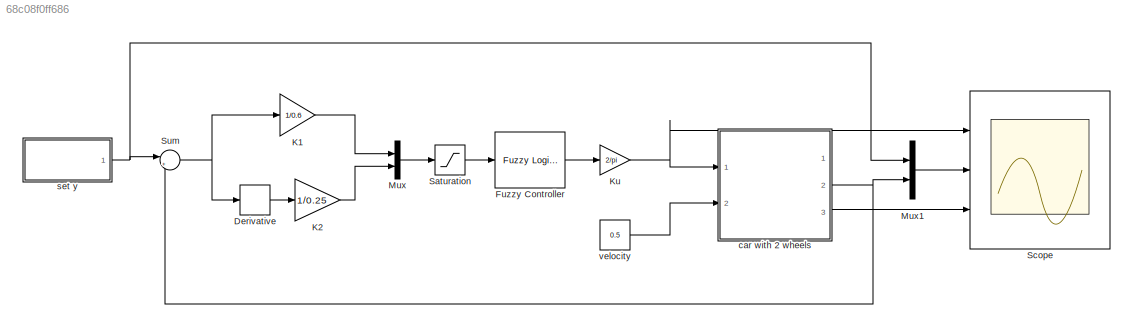
MODEL slx_68c08f0ff686
KIND model
CONFIG AbsTol = auto
CONFIG EnableMultiTasking = off
CONFIG FixedStep = 0.1
CONFIG MaxStep = auto
CONFIG MinStep = auto
CONFIG RelTol = 1e-3
CONFIG SampleTimeConstraint = Unconstrained
CONFIG Solver = ode5
CONFIG SolverName = ode5
CONFIG StartTime = 0.0
CONFIG StopTime = 120
BLOCK [Derivative] Derivative
BLOCK [Reference] Fuzzy Controller  REF=fuzblock/Fuzzy Logic   (lib defined in mdl_858b3b3e7478)
Controller
  Ports = [1, 1]
  SourceBlock = fuzblock/Fuzzy Logic \nController
  SourceProductBaseCode = FL
  SourceProductName = Fuzzy Logic Toolbox
  SourceType = Fuzzy Inference System
BLOCK [Gain] K1
  Gain = 1/0.6
  OutDataTypeStr = Inherit: Inherit via internal rule
  ParamDataTypeStr = Inherit: Inherit via internal rule
  SaturateOnIntegerOverflow = off
BLOCK [Gain] K2
  Gain = 1/0.25
  OutDataTypeStr = Inherit: Inherit via internal rule
  ParamDataTypeStr = Inherit: Inherit via internal rule
  SaturateOnIntegerOverflow = off
BLOCK [Gain] Ku
  Gain = 2/pi
  OutDataTypeStr = Inherit: Inherit via internal rule
  ParamDataTypeStr = Inherit: Inherit via internal rule
  SaturateOnIntegerOverflow = off
BLOCK [Mux] Mux
  DisplayOption = bar
  Inputs = 2
  Ports = [2, 1]
BLOCK [Mux] Mux1
  DisplayOption = bar
  Inputs = 2
  Ports = [2, 1]
BLOCK [Saturate] Saturation
  InputPortMap = u0
  LowerLimit = -1
  Ports = [1, 1]
  UpperLimit = 1
BLOCK [Scope] Scope
  Floating = off
  NumInputPorts = 3
  Ports = [3]
  ScopeSpecificationString = Simulink.scopes.TimeScopeBlockCfg('CurrentConfiguration', extmgr.ConfigurationSet(extmgr.Configuration('Core','General UI',true,'FigureColor',[1 1 1]),extmgr.Configuration('Core','Source UI',true),extmgr.Configuration('Sources','WiredSimulink',true),extmgr.Configuration('Visuals','Time Domain',true,'SerializedDisplays',{struct('MinYLimReal','-0.57538','MaxYLimReal','0.76526','YLabelReal','','MinYL...<+3248ch>
BLOCK [Sum] Sum
  IconShape = round
  InputSameDT = off
  Inputs = |+-
  OutDataTypeStr = Inherit: Inherit via internal rule
  Ports = [2, 1]
  SaturateOnIntegerOverflow = off
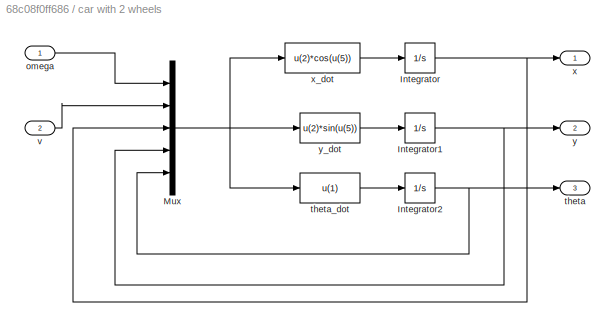
BLOCK [SubSystem] car with 2 wheels
  Ports = [2, 3]
  RequestExecContextInheritance = off
BLOCK [Integrator] car with 2 wheels/Integrator
  Ports = [1, 1]
BLOCK [Integrator] car with 2 wheels/Integrator1
  Ports = [1, 1]
BLOCK [Integrator] car with 2 wheels/Integrator2
  Ports = [1, 1]
BLOCK [Mux] car with 2 wheels/Mux
  DisplayOption = bar
  Inputs = 5
  Ports = [5, 1]
BLOCK [Inport] car with 2 wheels/omega
  IconDisplay = Port number
BLOCK [Outport] car with 2 wheels/theta
  IconDisplay = Port number
  Port = 3
BLOCK [Fcn] car with 2 wheels/theta_dot
  Expr = u(1)
BLOCK [Inport] car with 2 wheels/v
  IconDisplay = Port number
  Port = 2
BLOCK [Outport] car with 2 wheels/x
  IconDisplay = Port number
BLOCK [Fcn] car with 2 wheels/x_dot
  Expr = u(2)*cos(u(5))
BLOCK [Outport] car with 2 wheels/y
  IconDisplay = Port number
  Port = 2
BLOCK [Fcn] car with 2 wheels/y_dot
  Expr = u(2)*sin(u(5))
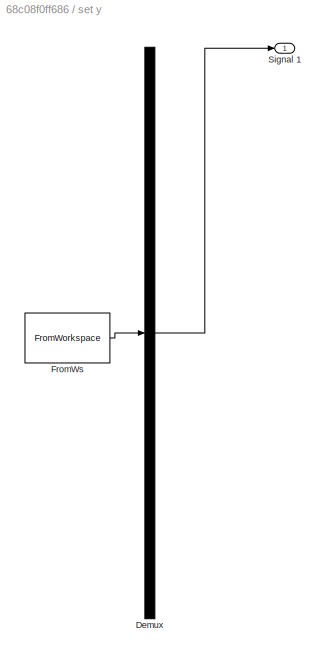
BLOCK [SubSystem] set y
  ClipboardFcn = sigbuilder_block('clipboard');
  CloseFcn = sigbuilder_block('close');
  ContinueFcn = sigbuilder_block('continue');
  CopyFcn = sigbuilder_block('copy');
  DeleteFcn = sigbuilder_block('delete');
  LoadFcn = sigbuilder_block('load');
  MaskHideContents = on
  ModelCloseFcn = sigbuilder_block('modelClose');
  NameChangeFcn = sigbuilder_block('namechange');
  OpenFcn = sigbuilder_block('open',[5.4 30 1141.2 522.6 ]);
  PauseFcn = sigbuilder_block('pause');
  Ports = [0, 1]
  PreSaveFcn = sigbuilder_block('preSave');
  RequestExecContextInheritance = off
  StartFcn = sigbuilder_block('start');
  StopFcn = sigbuilder_block('stop');
  Tag = STV Subsys
BLOCK [Demux] set y/Demux
  Outputs = 1
  Ports = [1, 1]
  Tag = STV Demux
BLOCK [FromWorkspace] set y/FromWs
  SampleTime = 0
  Tag = STV FromWs
  VariableName = tuvar
  ZeroCross = on
BLOCK [Outport] set y/Signal 1
  IconDisplay = Port number
  Tag = STV Outport
BLOCK [Constant] velocity
  Value = 0.5
LINE Derivative:1 -> K2:1
LINE Fuzzy Controller:1 -> Ku:1
LINE K1:1 -> Mux:1
LINE K2:1 -> Mux:2
NET Ku:1 -> Scope:1, car with 2 wheels:1
LINE Mux1:1 -> Scope:2
LINE Mux:1 -> Saturation:1
LINE Saturation:1 -> Fuzzy Controller:1
NET Sum:1 -> Derivative:1, K1:1
NET car with 2 wheels/Integrator1:1 -> car with 2 wheels/Mux:4, car with 2 wheels/y:1
NET car with 2 wheels/Integrator2:1 -> car with 2 wheels/Mux:5, car with 2 wheels/theta:1
NET car with 2 wheels/Integrator:1 -> car with 2 wheels/Mux:3, car with 2 wheels/x:1
NET car with 2 wheels/Mux:1 -> car with 2 wheels/theta_dot:1, car with 2 wheels/x_dot:1, car with 2 wheels/y_dot:1
LINE car with 2 wheels/omega:1 -> car with 2 wheels/Mux:1
LINE car with 2 wheels/theta_dot:1 -> car with 2 wheels/Integrator2:1
LINE car with 2 wheels/v:1 -> car with 2 wheels/Mux:2
LINE car with 2 wheels/x_dot:1 -> car with 2 wheels/Integrator:1
LINE car with 2 wheels/y_dot:1 -> car with 2 wheels/Integrator1:1
NET car with 2 wheels:2 -> Mux1:2, Sum:2
LINE car with 2 wheels:3 -> Scope:3
NET set y:1 -> Mux1:1, Sum:1
LINE velocity:1 -> car with 2 wheels:2
note: NET lines group one-source signal fan-out (src -> all destinations, sorted); 1:1 wires keep LINE
